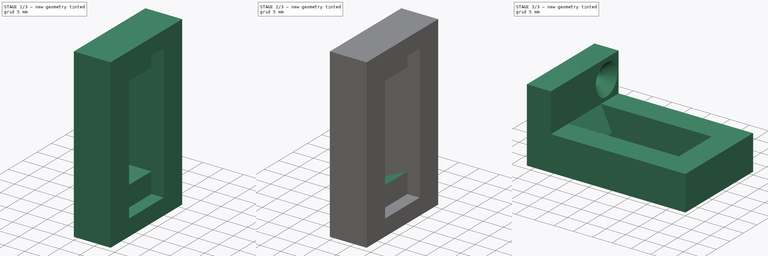
[diagram: build sequence overview — one tinted view per stage of 3, left to right]
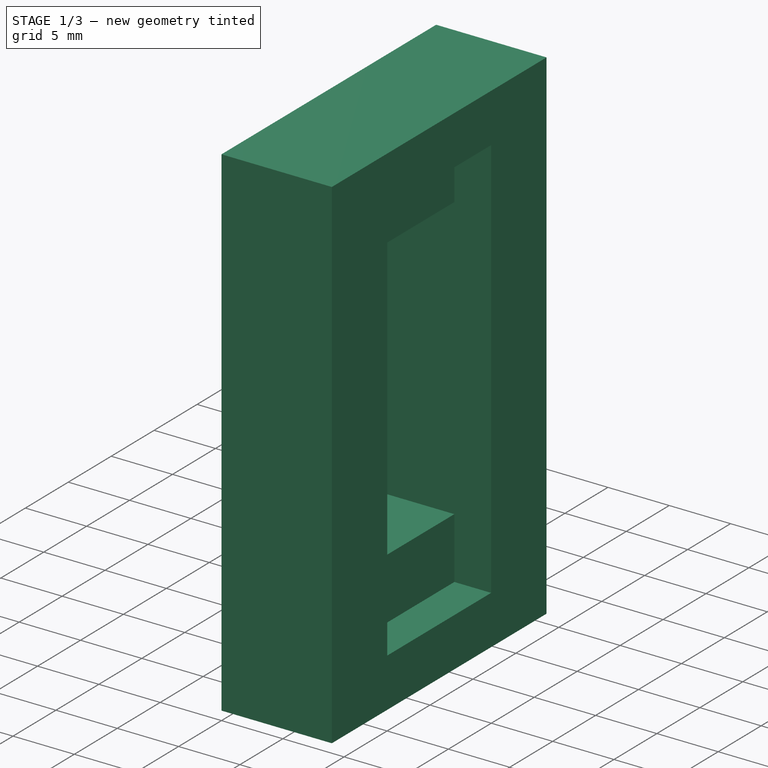
[diagram: stage 1 of 3 — iso view after this stage's code; geometry added in this stage tinted green]
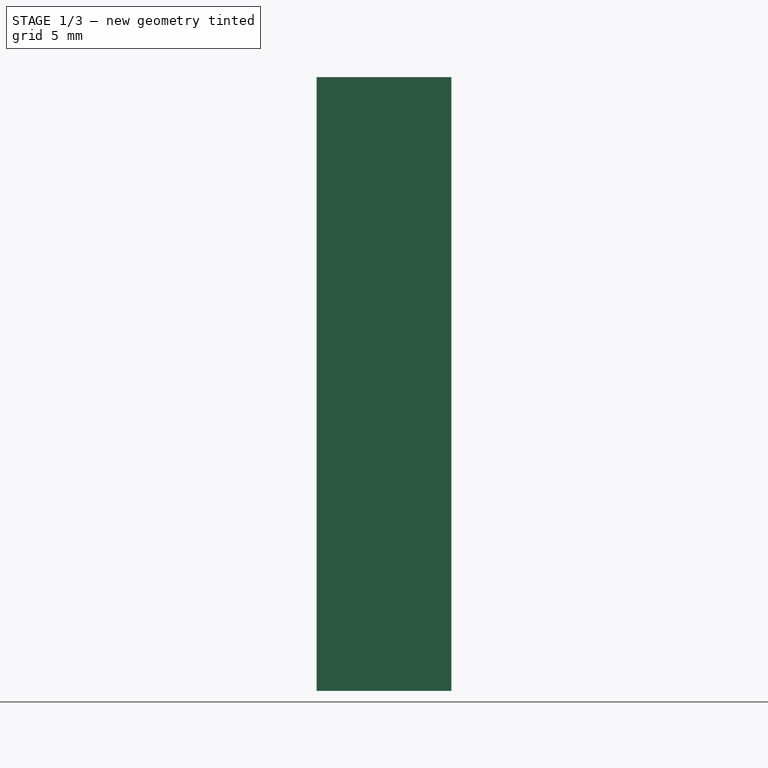
[diagram: stage 1 of 3 — front view after this stage's code; geometry added in this stage tinted green]
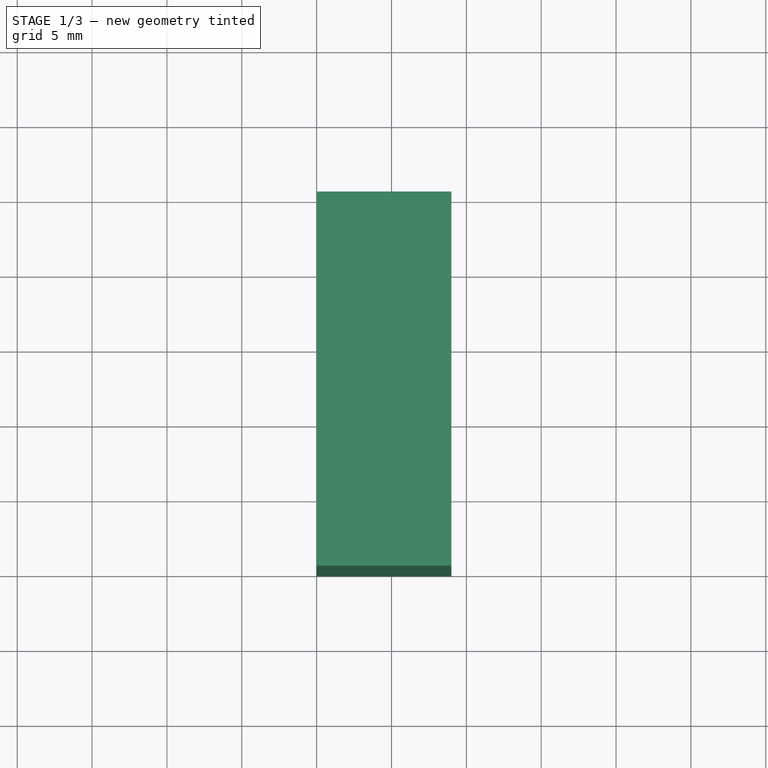
[diagram: stage 1 of 3 — top view after this stage's code; geometry added in this stage tinted green]
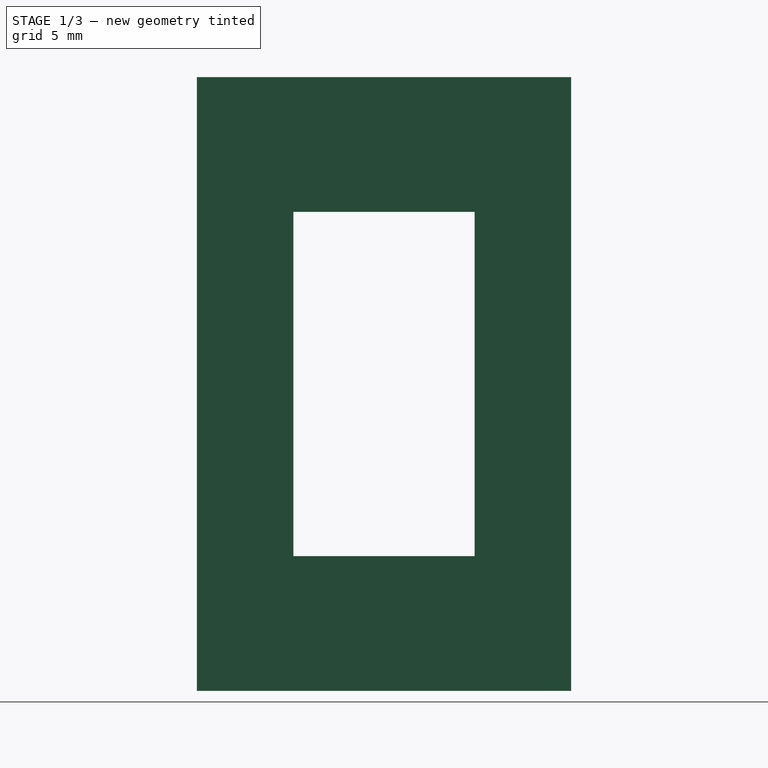
[diagram: stage 1 of 3 — right view after this stage's code; geometry added in this stage tinted green]
FCSTD DOCUMENT  (FreeCAD 0.14R3702 (Git))
Label: soporte-servo-grua
License: CC-BY 3.0
LicenseURL: http://creativecommons.org/licenses/by/3.0/
objects: Sketcher::SketchObject×4, PartDesign::Pocket×3, PartDesign::Draft×2, Part::Box×1, PartDesign::Pad×1, PartDesign::Chamfer×1
note: 16 computed .brp shape members not serialized (recipe doc carries the construction recipe); baked Part::Feature solids carry a one-line shape summary decoded from their .brp

FEATURE [Part::Box] Box  label="cuerpo"
  Height = 41
  Length = 9
  Width = 25
FEATURE [Sketcher::SketchObject] Sketch  label="sk-hueco-servo"
  ExternalGeometry = -> [Box]
  Placement = pos=(9,0,0) rot=(0.57735,0.57735,0.57735;2.0944rad)
  Support = -> Box [Face2]
  sketch-geometry (6):
    g0: LineSegment StartX=6.45 StartY=37 StartZ=0 EndX=18.55 EndY=37 EndZ=0
    g1: LineSegment StartX=18.55 StartY=37 StartZ=0 EndX=18.55 EndY=4 EndZ=0
    g2: LineSegment StartX=18.55 StartY=4 StartZ=0 EndX=6.45 EndY=4 EndZ=0
    g3: LineSegment StartX=6.45 StartY=4 StartZ=0 EndX=6.45 EndY=37 EndZ=0
    g4: LineSegment [constr] StartX=0 StartY=41 StartZ=0 EndX=6.45 EndY=37 EndZ=0
    g5: LineSegment [constr] StartX=18.55 StartY=4 StartZ=0 EndX=25 EndY=0 EndZ=0
  constraints (16):
    c: Coincident(g0,g1)
    c: Coincident(g1,g2)
    c: Coincident(g2,g3)
    c: Horizontal(g0)
    c: Horizontal(g2)
    c: Vertical(g1)
    c: Vertical(g3)
    c: DistanceX(g0) = 12.1
    c: DistanceY(g3) = 33
    c: Coincident(g0,g3)
    c: Parallel(g4,g5)
    c: Coincident(g1,g5)
    c: Coincident(g0,g4)
    c: Coincident(g5,g-3)
    c: Coincident(g4,g-4)
    c: Equal(g4,g5)
FEATURE [PartDesign::Pocket] Pocket  label="pk-hueco-servo"
  Length = 3
  Sketch = -> Sketch
  Type = 0
FEATURE [Sketcher::SketchObject] Sketch001  label="sk-hueco-cuerpo-servo"
  ExternalGeometry = -> [Pocket]
  Placement = pos=(6,0,0) rot=(0.57735,0.57735,0.57735;2.0944rad)
  Support = -> Pocket [Face11]
  sketch-geometry (4):
    g0: LineSegment StartX=6.45 StartY=32 StartZ=0 EndX=18.55 EndY=32 EndZ=0
    g1: LineSegment StartX=18.55 StartY=32 StartZ=0 EndX=18.55 EndY=9 EndZ=0
    g2: LineSegment StartX=18.55 StartY=9 StartZ=0 EndX=6.45 EndY=9 EndZ=0
    g3: LineSegment StartX=6.45 StartY=9 StartZ=0 EndX=6.45 EndY=32 EndZ=0
  constraints (12):
    c: Coincident(g0,g1)
    c: Coincident(g1,g2)
    c: Coincident(g2,g3)
    c: Coincident(g3,g0)
    c: Horizontal(g0)
    c: Horizontal(g2)
    c: Vertical(g1)
    c: Vertical(g3)
    c: PointOnObject(g2,g-5)
    c: PointOnObject(g0,g-6)
    c: DistanceY(g2,g-5) = -5
    c: DistanceY(g0,g-5) = 5
FEATURE [PartDesign::Pocket] Pocket001  label="pk-hueco-cuerpo-servo"
  Length = 5
  Sketch = -> Sketch001
  Type = 1
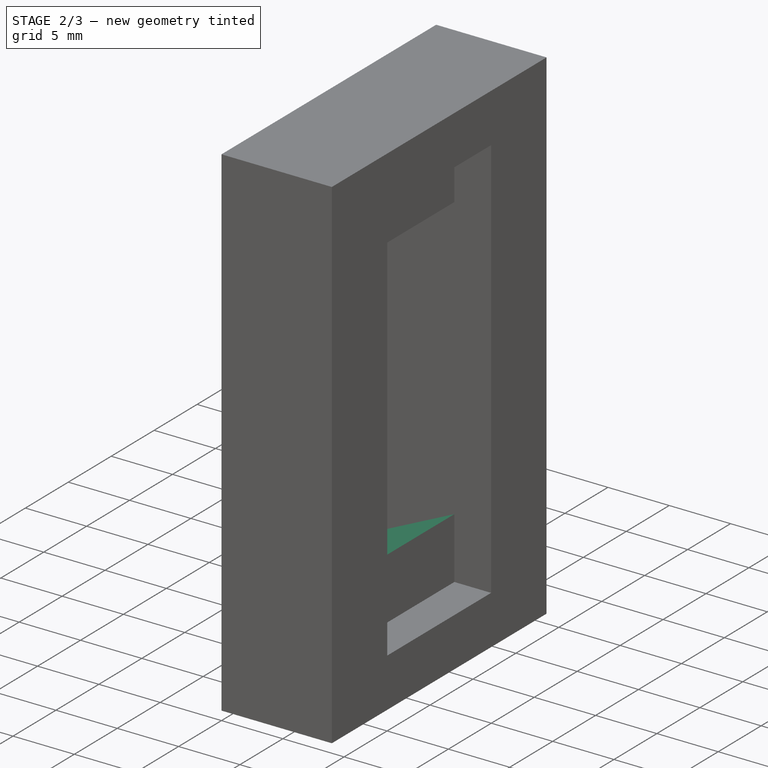
[diagram: stage 2 of 3 — iso view after this stage's code; geometry added in this stage tinted green]
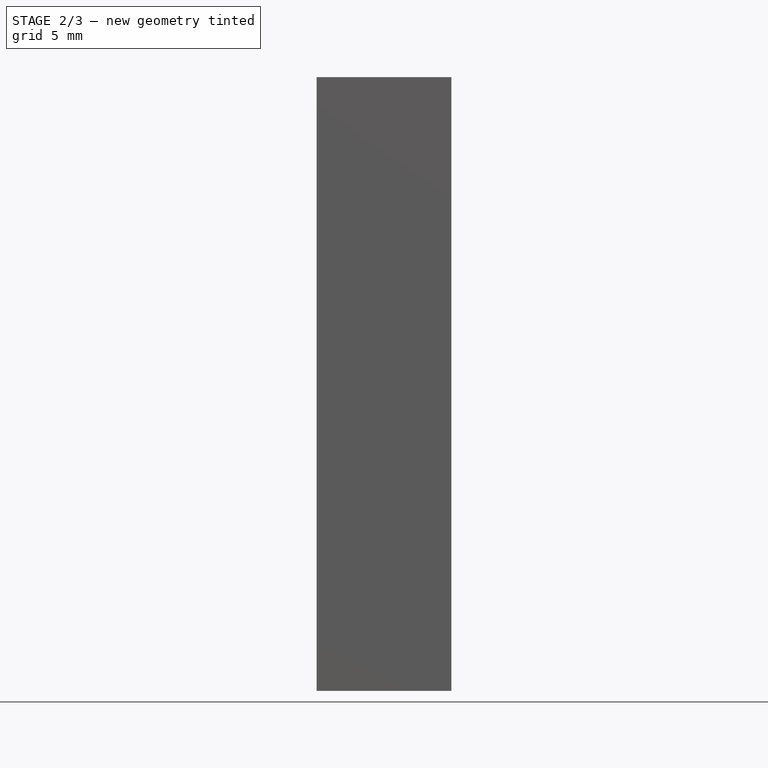
[diagram: stage 2 of 3 — front view after this stage's code; geometry added in this stage tinted green]
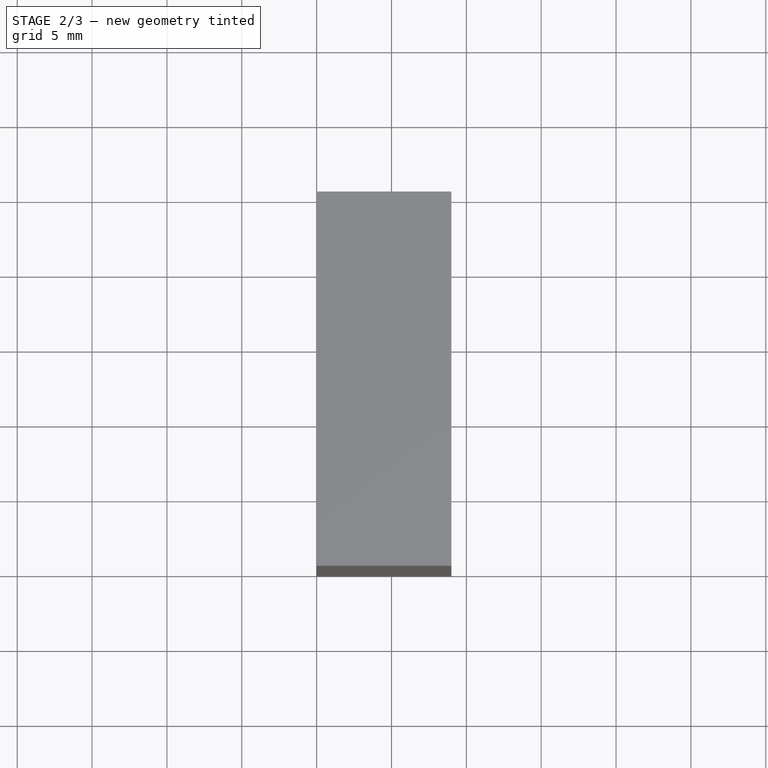
[diagram: stage 2 of 3 — top view after this stage's code; geometry added in this stage tinted green]
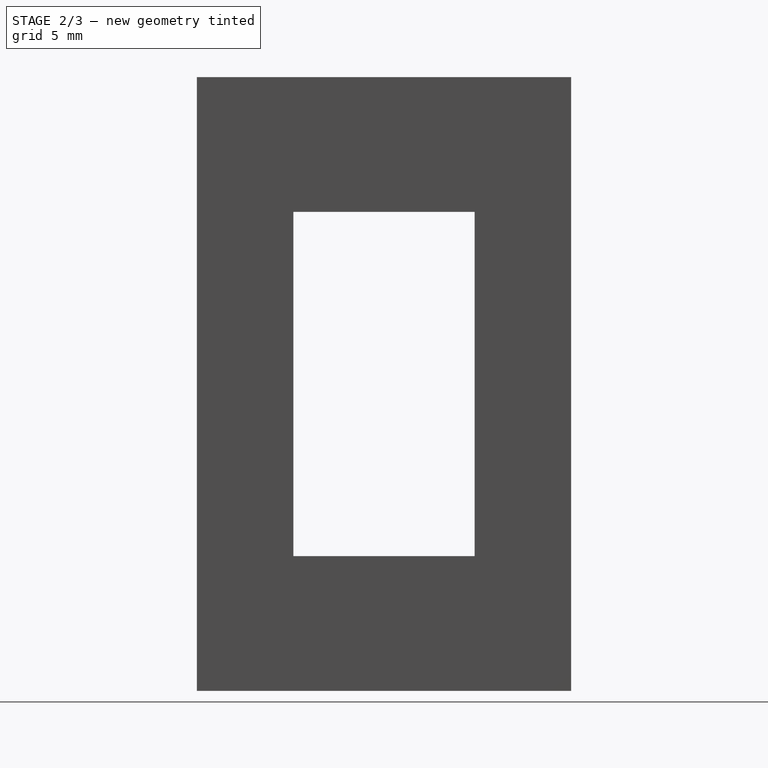
[diagram: stage 2 of 3 — right view after this stage's code; geometry added in this stage tinted green]
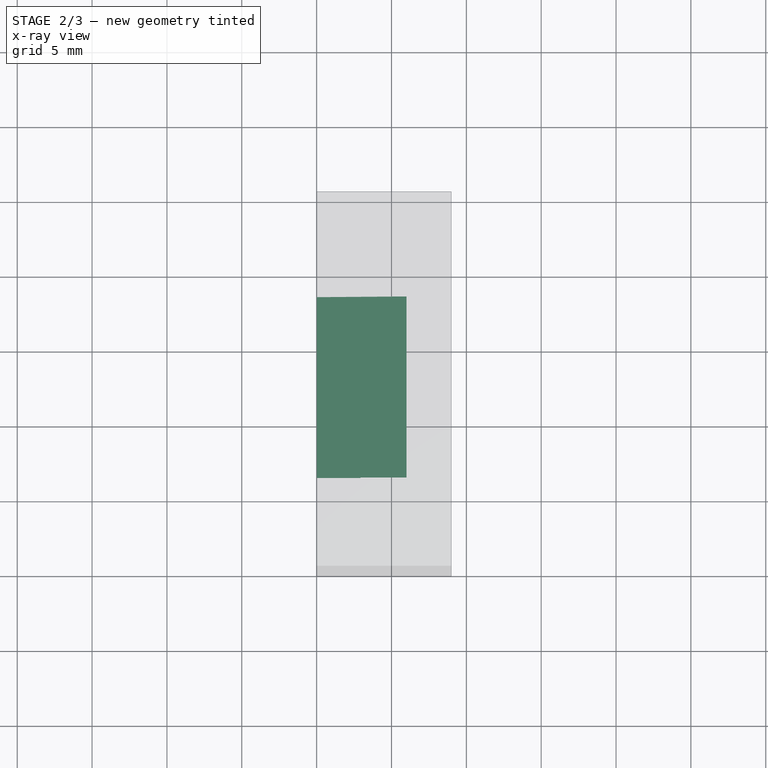
[diagram: stage 2 of 3 — x-ray composite at the top view; earlier geometry ghosted, this stage's added geometry solid]
FEATURE [PartDesign::Draft] Draft  label="draft-para-introducir-servo-1"
  Angle = 25
  Base = -> Pocket001 [Face7]
  NeutralPlane = -> Pocket001 [Face10]
  Reversed = true
FEATURE [PartDesign::Draft] Draft001  label="draft-para-introducit-servo-2"
  Angle = 25
  Base = -> Draft [Face6]
  NeutralPlane = -> Draft [Face9]
  Reversed = true
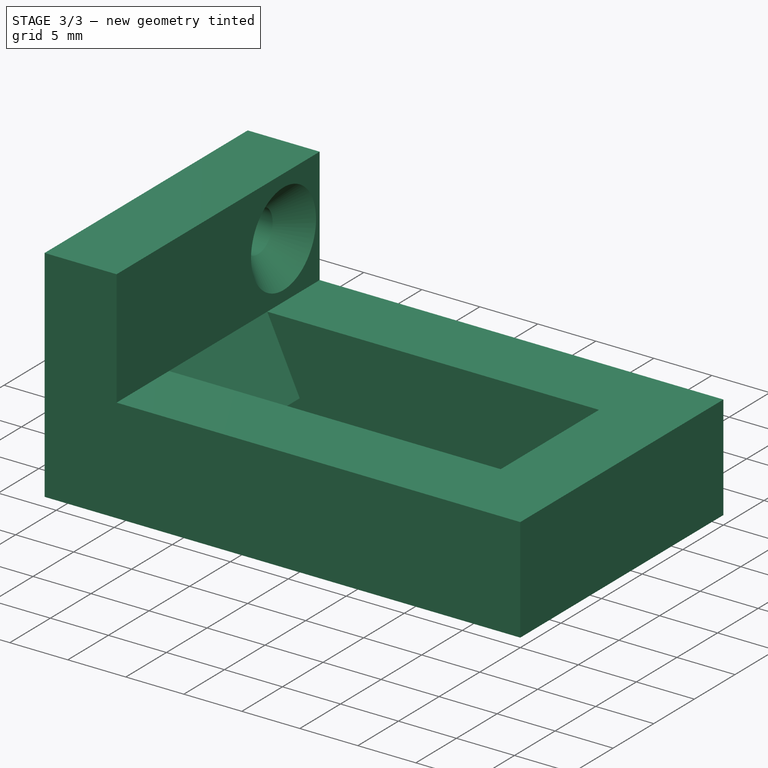
[diagram: stage 3 of 3 — iso view after this stage's code; geometry added in this stage tinted green]
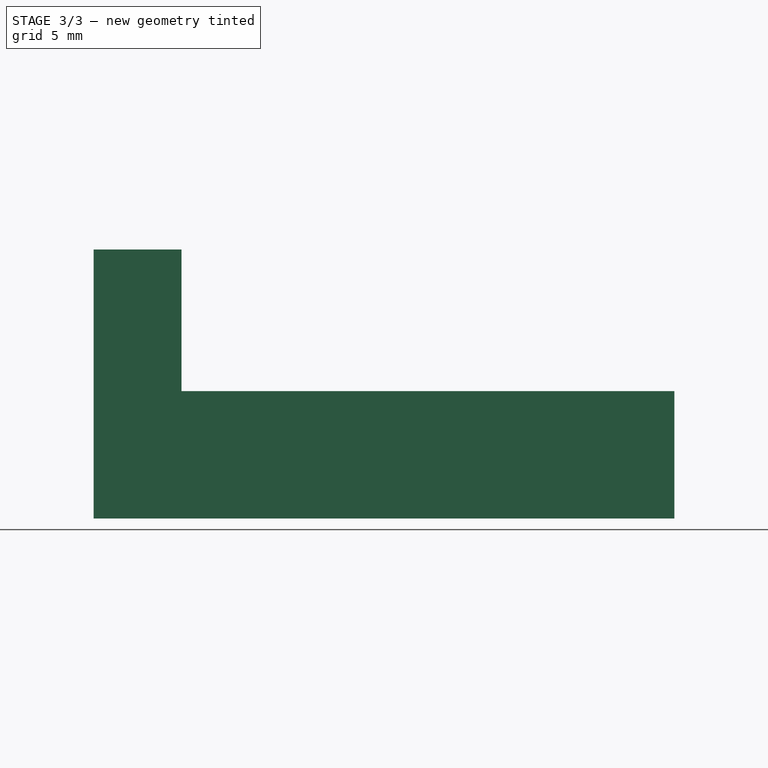
[diagram: stage 3 of 3 — front view after this stage's code; geometry added in this stage tinted green]
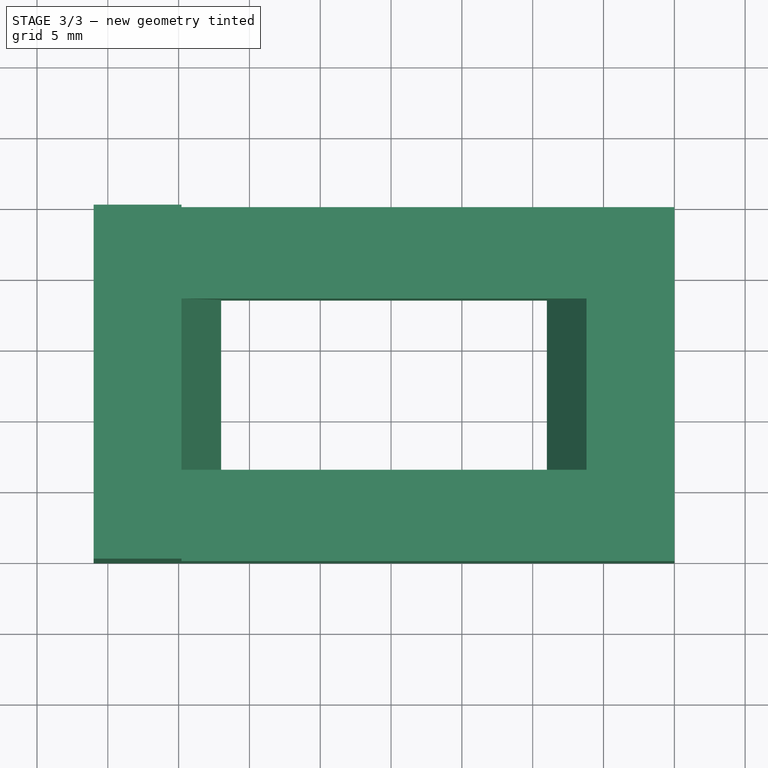
[diagram: stage 3 of 3 — top view after this stage's code; geometry added in this stage tinted green]
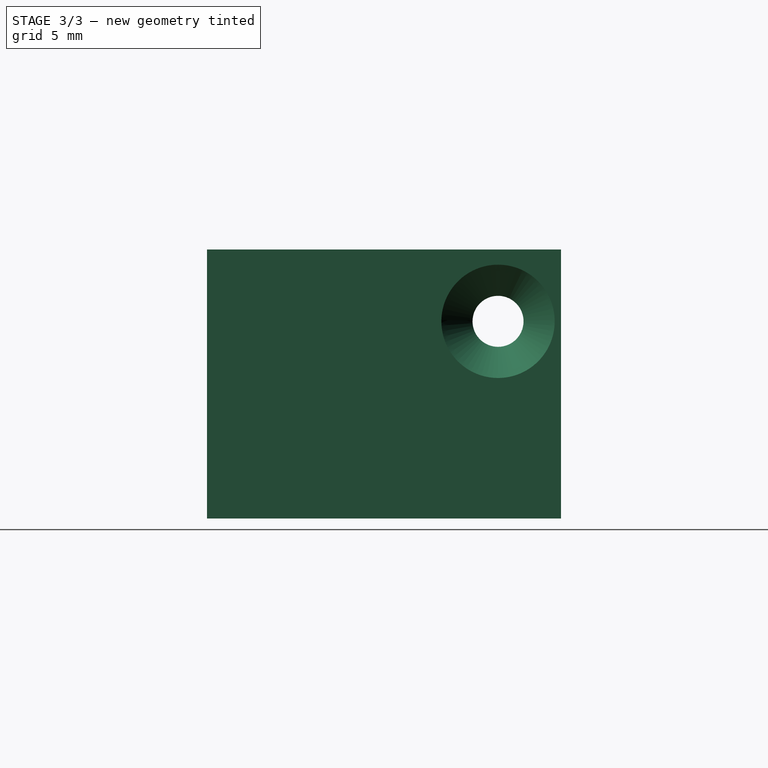
[diagram: stage 3 of 3 — right view after this stage's code; geometry added in this stage tinted green]
FEATURE [Sketcher::SketchObject] Sketch002  label="sk-base"
  ExternalGeometry = -> [Draft001]
  Placement = pos=(0,0,0) rot=(0.57735,-0.57735,-0.57735;2.0944rad)
  Support = -> Draft001 [Face1]
  sketch-geometry (4):
    g0: LineSegment StartX=-25 StartY=6.20215 StartZ=0 EndX=0 EndY=6.20215 EndZ=0
    g1: LineSegment StartX=0 StartY=6.20215 StartZ=0 EndX=0 EndY=0 EndZ=0
    g2: LineSegment StartX=0 StartY=0 StartZ=0 EndX=-25 EndY=0 EndZ=0
    g3: LineSegment StartX=-25 StartY=0 StartZ=0 EndX=-25 EndY=6.20215 EndZ=0
  constraints (11):
    c: Coincident(g0,g1)
    c: Coincident(g1,g2)
    c: Coincident(g2,g3)
    c: Coincident(g3,g0)
    c: Horizontal(g0)
    c: Horizontal(g2)
    c: Vertical(g1)
    c: Vertical(g3)
    c: PointOnObject(g0,g-6)
    c: PointOnObject(g2,g-5)
    c: PointOnObject(g-3,g0)
FEATURE [PartDesign::Pad] Pad  label="pad-base"
  Length = 10
  Length2 = 5
  Sketch = -> Sketch002
  Type = 0
FEATURE [Sketcher::SketchObject] Sketch003  label="sk-taladro"
  Placement = pos=(0,0,6.20215) rot=(0,0,1;0rad)
  Support = -> Pad [Face4]
  sketch-geometry (1):
    g0: Circle CenterX=-4.92487 CenterY=20.5513 CenterZ=0 NormalX=0 NormalY=0 NormalZ=1 Radius=1.8
  constraints (1):
    c: Radius(g0) = 1.8
FEATURE [PartDesign::Pocket] Pocket002  label="pk-taladro-tornillo"
  Length = 5
  Sketch = -> Sketch003
  Type = 1
FEATURE [PartDesign::Chamfer] Chamfer  label="soporte-servo-grua"
  Base = -> Pocket002 [Edge27]
  Placement = pos=(9,0,9) rot=(0,1,0;1.5708rad)
  Size = 2.2
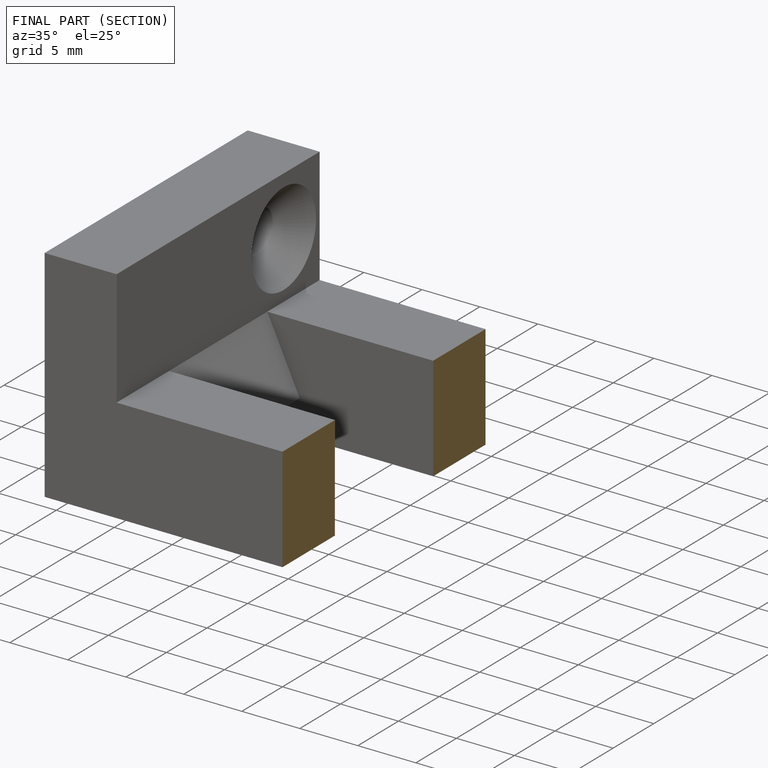
[diagram: finished part — half-section view (interior)]
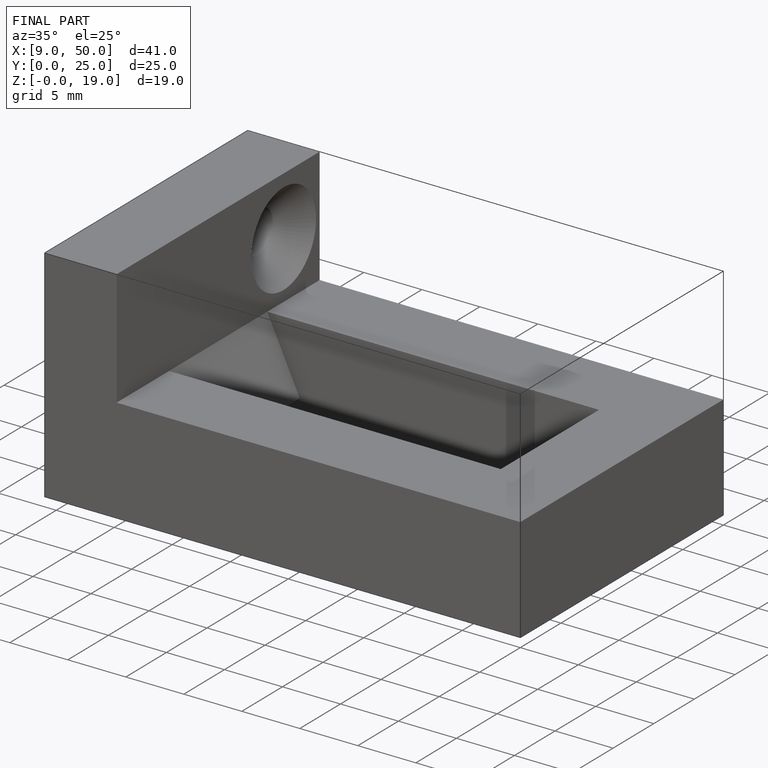
[diagram: finished part — iso view with bounding-box wireframe]
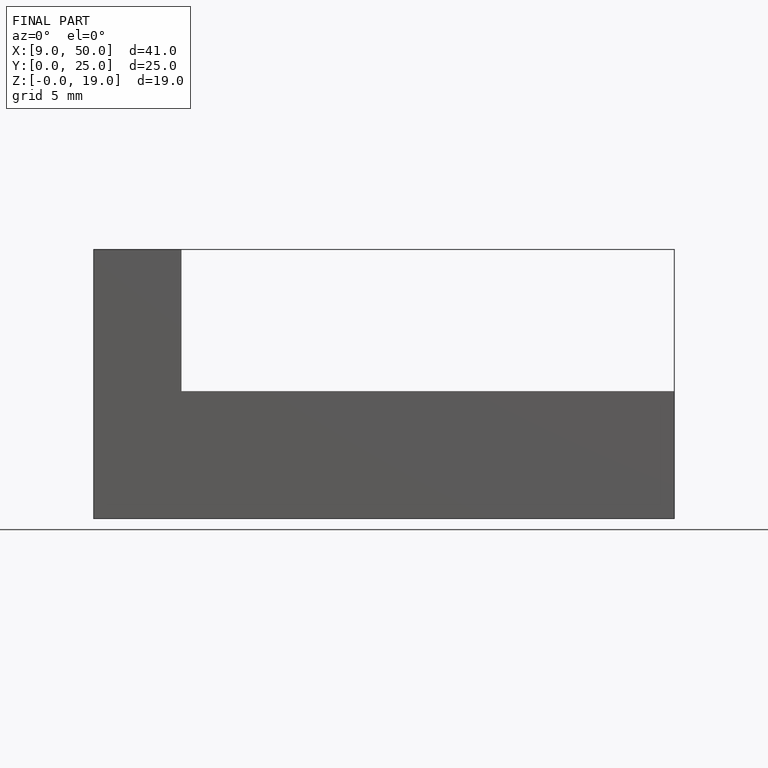
[diagram: finished part — front view with bounding-box wireframe]
